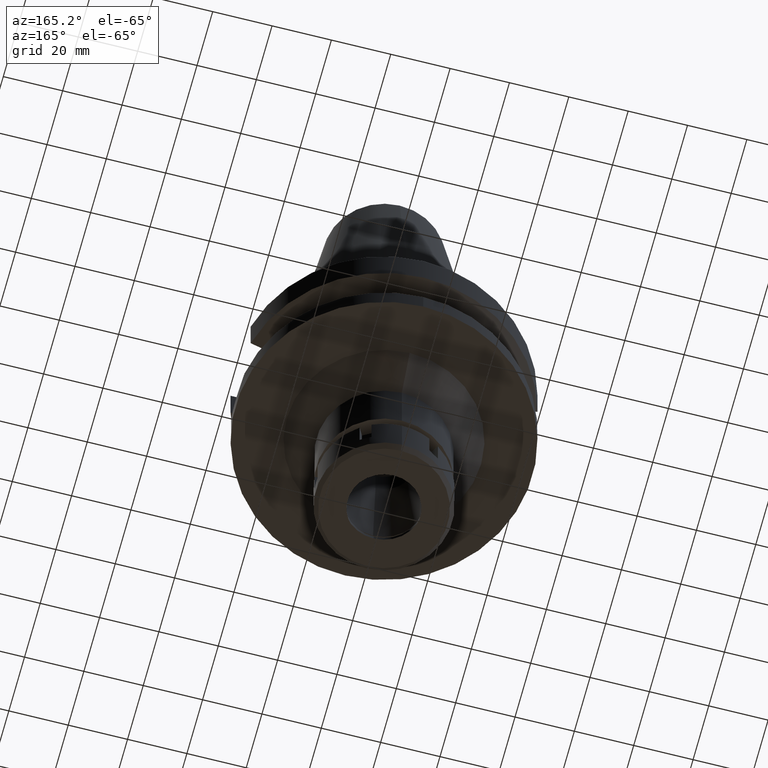
[diagram: clean part render]
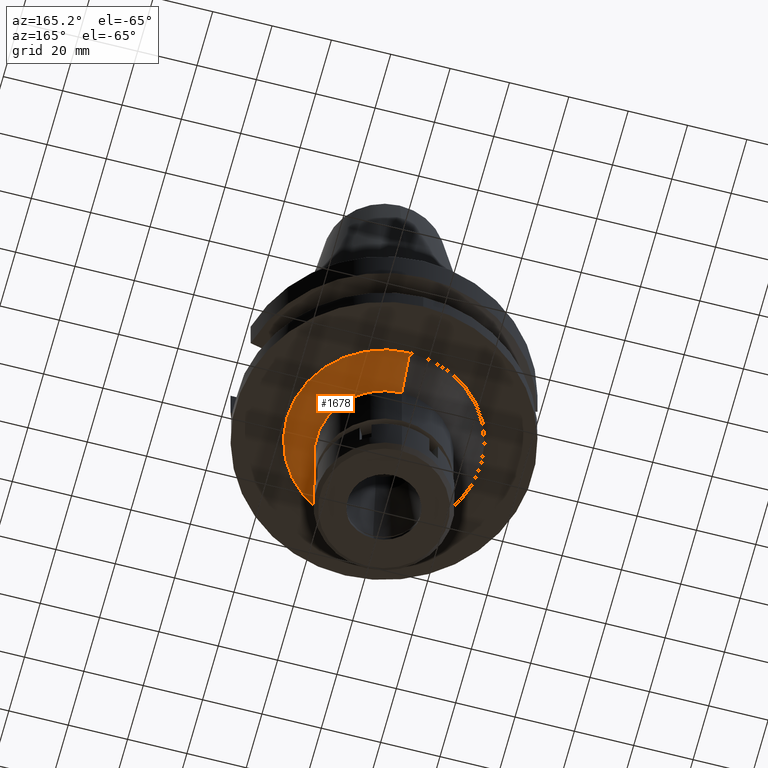
[diagram: same view with one face highlighted and labeled with its STEP entity id]
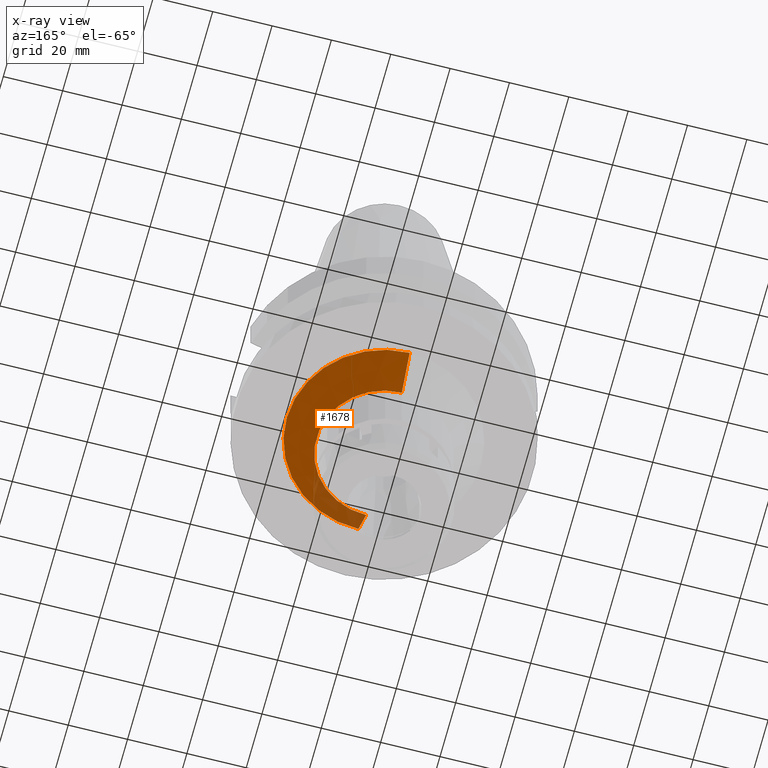
[diagram: x-ray of the same camera — body ghosted, the highlighted face saturated]
A machine part, auxiliary view. The second image highlights one B-rep face of the part: STEP entity #1678.
The next image is the same camera in x-ray: the body ghosted, the highlighted face saturated — about 13% of this face is hidden behind the body in this view.
In plain terms, the highlighted conical surface has half-angle 45 deg.
Its self-contained STEP definition (entity closure, byte-faithful):
#118 = EDGE_CURVE ( 'NONE', #2842, #2573, #734, .T. ) ;
#187 = EDGE_CURVE ( 'NONE', #530, #2842, #2829, .T. ) ;
#243 = EDGE_CURVE ( 'NONE', #530, #2232, #2227, .T. ) ;
#270 = CARTESIAN_POINT ( 'NONE',  ( 0.0000000000000000000, 32.75000000000000000, -38.00000000000000000 ) ) ;
#371 = AXIS2_PLACEMENT_3D ( 'NONE', #905, #3148, #1746 ) ;
#441 = ORIENTED_EDGE ( 'NONE', *, *, #1933, .F. ) ;
#459 = DIRECTION ( 'NONE',  ( 0.0000000000000000000, 0.0000000000000000000, -1.000000000000000000 ) ) ;
#530 = VERTEX_POINT ( 'NONE', #1698 ) ;
#734 = LINE ( 'NONE', #2453, #1897 ) ;
#786 = VECTOR ( 'NONE', #3031, 1000.000000000000114 ) ;
#847 = CARTESIAN_POINT ( 'NONE',  ( 0.0000000000000000000, 22.75000000000000000, -48.00000000000000000 ) ) ;
#905 = CARTESIAN_POINT ( 'NONE',  ( 0.0000000000000000000, 0.0000000000000000000, -48.00000000000000000 ) ) ;
#1090 = DIRECTION ( 'NONE',  ( 0.0000000000000000000, 0.0000000000000000000, 1.000000000000000000 ) ) ;
#1212 = CARTESIAN_POINT ( 'NONE',  ( 0.0000000000000000000, -32.75000000000000000, -38.00000000000000000 ) ) ;
#1238 = AXIS2_PLACEMENT_3D ( 'NONE', #3508, #459, #1507 ) ;
#1359 = CARTESIAN_POINT ( 'NONE',  ( 0.0000000000000000000, 0.0000000000000000000, -43.00000000000000000 ) ) ;
#1466 = CIRCLE ( 'NONE', #371, 22.75000000000000000 ) ;
#1507 = DIRECTION ( 'NONE',  ( 0.0000000000000000000, 1.000000000000000000, 0.0000000000000000000 ) ) ;
#1678 = ADVANCED_FACE ( 'NONE', ( #2119 ), #3420, .T. ) ;
#1698 = CARTESIAN_POINT ( 'NONE',  ( 0.0000000000000000000, 32.75000000000000000, -38.00000000000000000 ) ) ;
#1713 = AXIS2_PLACEMENT_3D ( 'NONE', #1359, #1090, #3608 ) ;
#1746 = DIRECTION ( 'NONE',  ( 0.0000000000000000000, 1.000000000000000000, 0.0000000000000000000 ) ) ;
#1867 = EDGE_LOOP ( 'NONE', ( #2805, #2563, #441, #3032 ) ) ;
#1897 = VECTOR ( 'NONE', #2434, 1000.000000000000114 ) ;
#1933 = EDGE_CURVE ( 'NONE', #2232, #2573, #1466, .T. ) ;
#2119 = FACE_OUTER_BOUND ( 'NONE', #1867, .T. ) ;
#2227 = LINE ( 'NONE', #270, #786 ) ;
#2232 = VERTEX_POINT ( 'NONE', #847 ) ;
#2434 = DIRECTION ( 'NONE',  ( 0.0000000000000000000, 0.7071067811865474617, -0.7071067811865474617 ) ) ;
#2453 = CARTESIAN_POINT ( 'NONE',  ( 0.0000000000000000000, -32.75000000000000000, -38.00000000000000000 ) ) ;
#2480 = CARTESIAN_POINT ( 'NONE',  ( 0.0000000000000000000, -22.75000000000000000, -48.00000000000000000 ) ) ;
#2563 = ORIENTED_EDGE ( 'NONE', *, *, #118, .T. ) ;
#2573 = VERTEX_POINT ( 'NONE', #2480 ) ;
#2805 = ORIENTED_EDGE ( 'NONE', *, *, #187, .T. ) ;
#2829 = CIRCLE ( 'NONE', #1238, 32.75000000000000000 ) ;
#2842 = VERTEX_POINT ( 'NONE', #1212 ) ;
#3031 = DIRECTION ( 'NONE',  ( 0.0000000000000000000, -0.7071067811865474617, -0.7071067811865474617 ) ) ;
#3032 = ORIENTED_EDGE ( 'NONE', *, *, #243, .F. ) ;
#3148 = DIRECTION ( 'NONE',  ( 0.0000000000000000000, 0.0000000000000000000, -1.000000000000000000 ) ) ;
#3420 = CONICAL_SURFACE ( 'NONE', #1713, 27.75000000000000000, 0.7853981633972997312 ) ;
#3508 = CARTESIAN_POINT ( 'NONE',  ( 0.0000000000000000000, 0.0000000000000000000, -38.00000000000000000 ) ) ;
#3608 = DIRECTION ( 'NONE',  ( 0.0000000000000000000, 1.000000000000000000, 0.0000000000000000000 ) ) ;